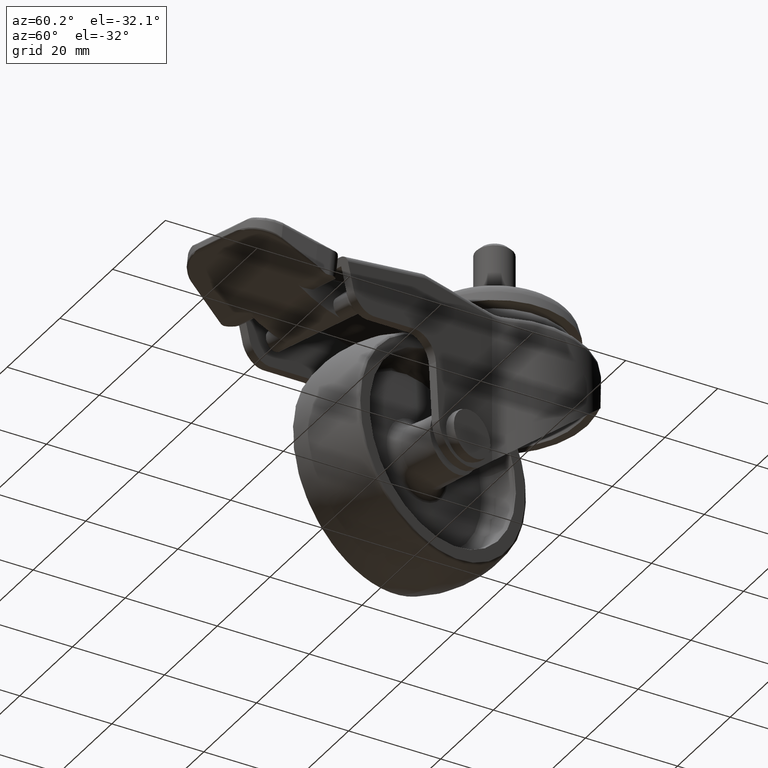
[diagram: clean part render]
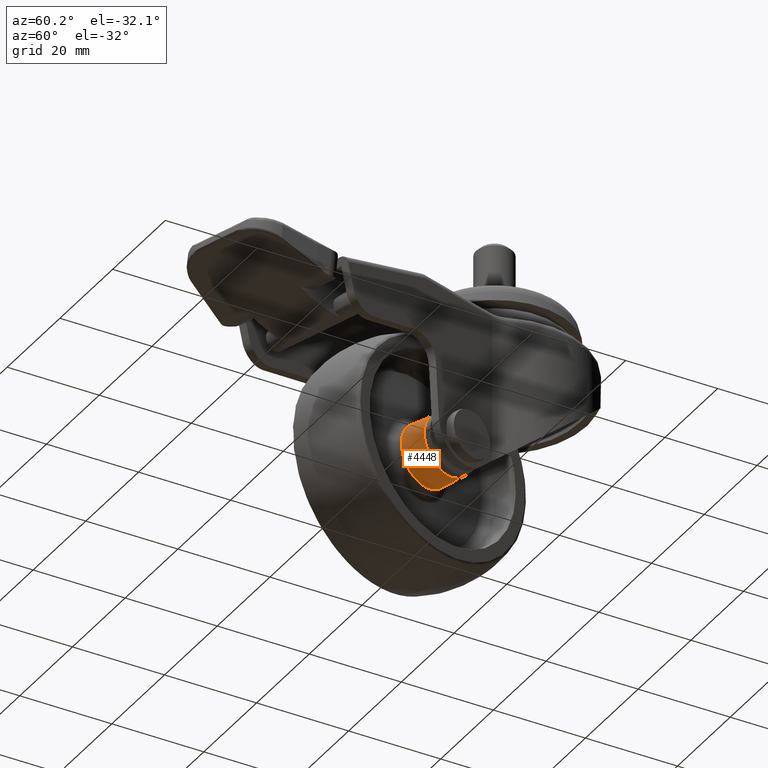
[diagram: same view with one face highlighted and labeled with its STEP entity id]
A machine part, auxiliary view. The second image highlights one B-rep face of the part: STEP entity #4448.
In plain terms, the highlighted conical surface has half-angle 1.5 deg.
Its self-contained STEP definition (entity closure, byte-faithful):
#949=CONICAL_SURFACE('',#4763,6.64966882352402,0.0261799387798979);
#1061=FACE_BOUND('',#1491,.T.);
#1187=FACE_OUTER_BOUND('',#1490,.T.);
#1490=EDGE_LOOP('',(#3160));
#1491=EDGE_LOOP('',(#3161));
#1856=CIRCLE('',#4749,6.64966882352425);
#1863=CIRCLE('',#4764,6.50000000000084);
#2050=VERTEX_POINT('',#6550);
#2057=VERTEX_POINT('',#6572);
#2491=EDGE_CURVE('',#2050,#2050,#1856,.T.);
#2498=EDGE_CURVE('',#2057,#2057,#1863,.T.);
#3160=ORIENTED_EDGE('',*,*,#2498,.T.);
#3161=ORIENTED_EDGE('',*,*,#2491,.T.);
#4448=ADVANCED_FACE('',(#1187,#1061),#949,.T.);
#4749=AXIS2_PLACEMENT_3D('',#6551,#5254,#5255);
#4763=AXIS2_PLACEMENT_3D('',#6571,#5282,#5283);
#4764=AXIS2_PLACEMENT_3D('',#6573,#5284,#5285);
#5254=DIRECTION('center_axis',(-1.,0.,0.));
#5255=DIRECTION('ref_axis',(0.,0.,1.));
#5282=DIRECTION('center_axis',(1.,0.,0.));
#5283=DIRECTION('ref_axis',(0.,0.,-1.));
#5284=DIRECTION('center_axis',(1.,0.,0.));
#5285=DIRECTION('ref_axis',(0.,0.,-1.));
#6550=CARTESIAN_POINT('',(49.8043587584625,-14.575772836765,6.64966882352508));
#6551=CARTESIAN_POINT('Origin',(49.8043587584625,-14.575772836765,0.));
#6571=CARTESIAN_POINT('Origin',(49.804358758422,-14.575772836765,0.));
#6572=CARTESIAN_POINT('',(44.0887369832694,-14.575772836765,-6.50000000000084));
#6573=CARTESIAN_POINT('Origin',(44.0887369832694,-14.575772836765,0.));